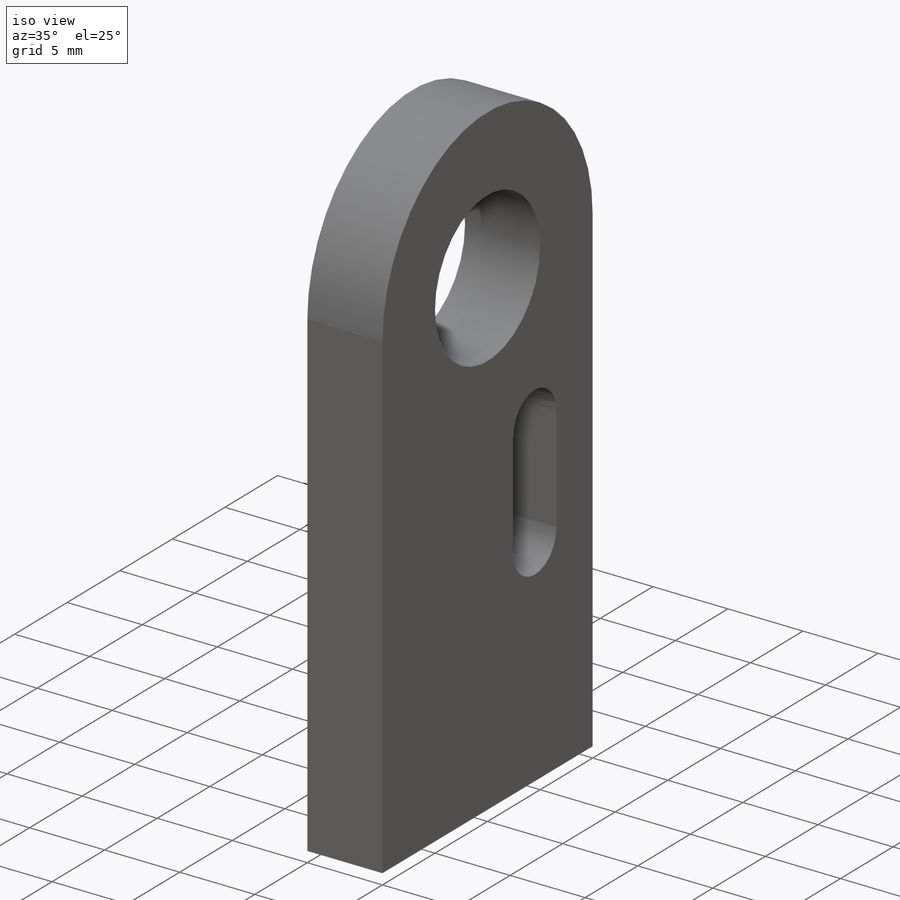
[diagram: iso view]
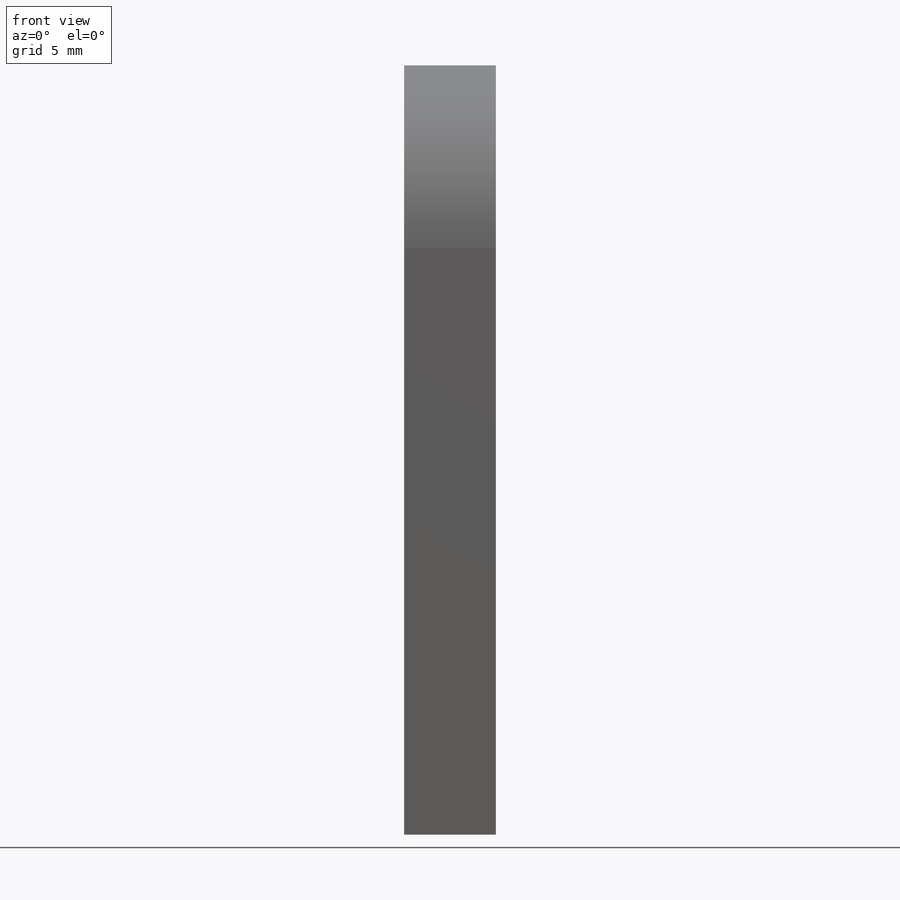
[diagram: front view]
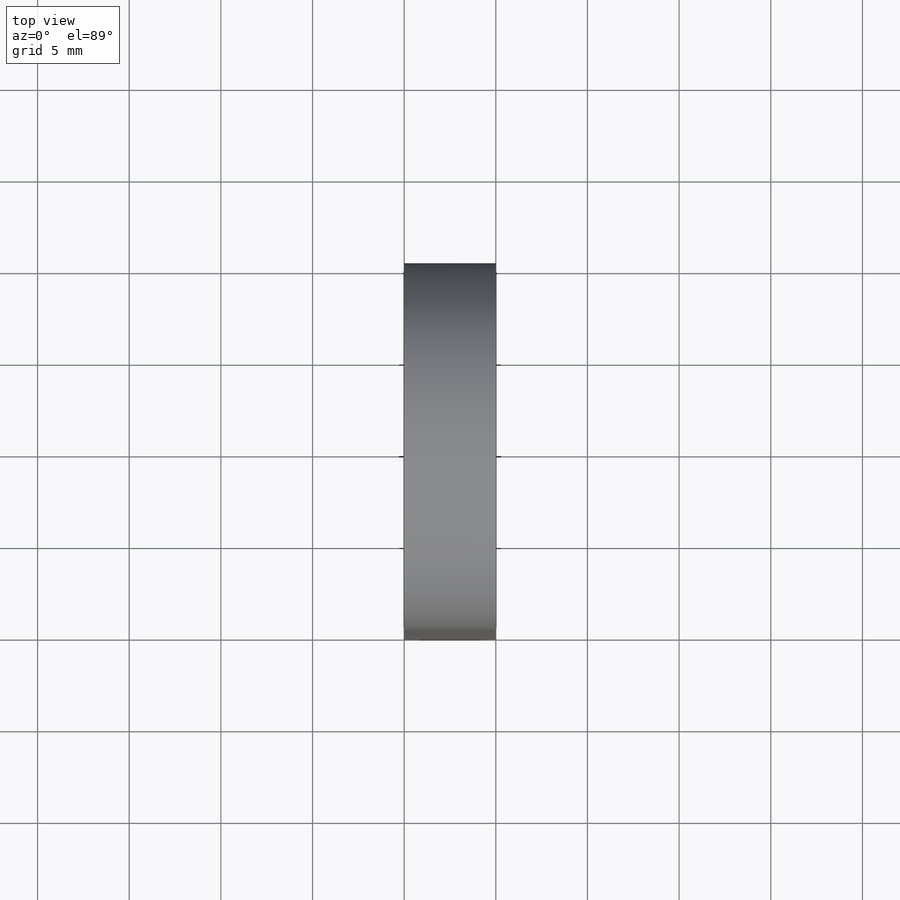
[diagram: top view]
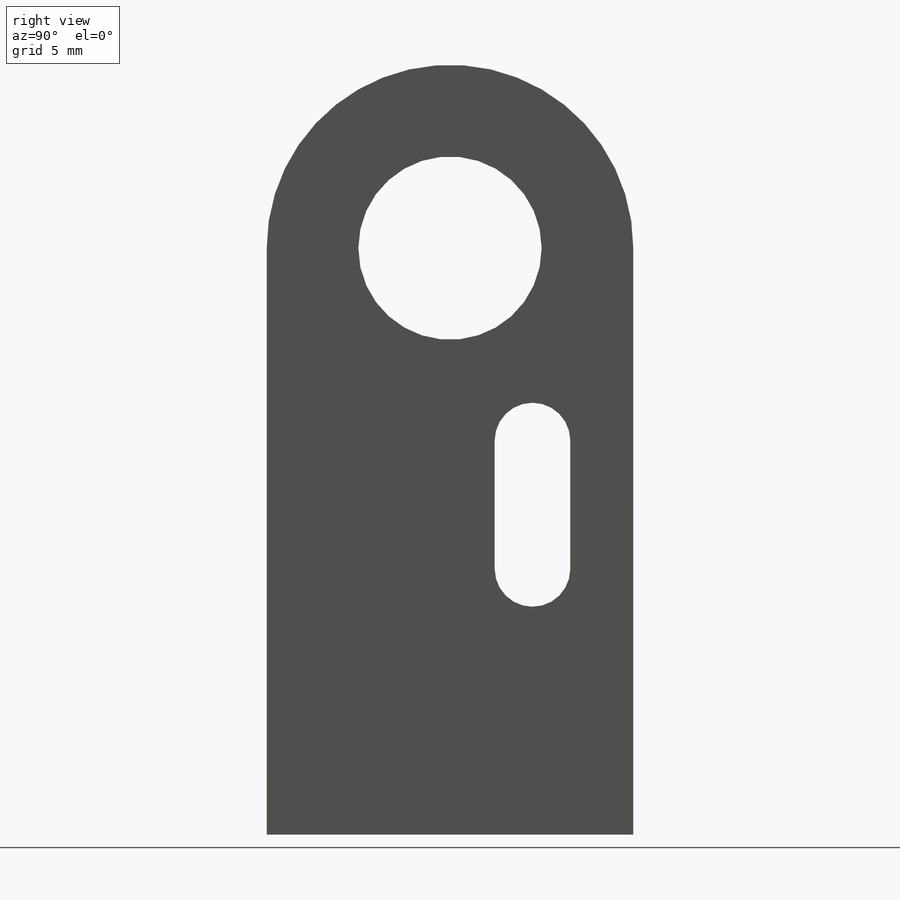
[diagram: right view]
SOLIDWORKS PART (.sldprt)
format: sldprt  version: not decoded by parser v0  size: 296,960 bytes
history: native  units: mm
features: sketch x11, mirror x4, hole x3, material x1, extrude x1, thread x1, plane x1 (+12 scaffold rows collapsed)
feature tree (34):
  scaffold x12  (default folders/planes/origin — collapsed)
  material  "Material <not specified>"
  sketch  "Sketch1"  dims[c1.D2=10.0mm c1.D1=10.0mm c2.D2=42.0mm c2.D3=10.0mm c3.D2=10.0mm c3.D3=10.0mm c3.D4=10.0mm c4.D3=7.5mm c4.D4=22.0mm c5.D3=5.0mm c5.D1=40.0mm c6.D3=5.0mm c6.D4=12.5mm c6.D5=5.0mm c6.D6=10.0mm]
  extrude  "Boss-Extrude1"  Depth=5mm
  sketch  "Sketch3"  dims[D1=32.0mm]
  hole  "Ø11.0 (11) Diameter Hole1"  Diameter=11mm Depth=25mm
  sketch  "3DSketch2"
  sketch  "Sketch4"  dims[hole-wizard template sketch: 47 standard entries collapsed; hole parameters kept: c15.Hole Depth=25.0mm c15.D3=~14.816244mm c15.Drill Angle=118.0deg]
  hole  "M3 Tapped Hole2"  Diameter=2.5mm Depth=18mm
  sketch  "Sketch10"
  sketch  "Sketch9"  dims[hole-wizard template sketch: 47 standard entries collapsed; hole parameters kept: c15.Tap Drill Depth=18.0mm c15.D3=~14.816244mm c15.Drill Angle=118.0deg]
  thread  "Hole Thread4"  Diameter=6mm  [1 undecoded]
  sketch  "Sketch11"
  sketch  "Sketch12"
  plane  "Plane1"
  mirror  "Mirror1"
  sketch  "Sketch13"  dims[D1=8.0mm D2=8.0mm]
  hole  "M3 Tapped Hole3"  Diameter=2.5mm Depth=8mm
  sketch  "3DSketch3"
  sketch  "Sketch14"  dims[hole-wizard template sketch: 50 standard entries collapsed; hole parameters above]
  mirror  "Hole Thread5"
  mirror  "Hole Thread6"
  mirror  "Hole Thread7"
decode coverage: 11 of 20 modeling features carry decoded parameters
note: ~ marks probable driven/reference dimensions
note: 1 parameter value undecoded
note: suppression state not decoded; provenance and decode notes live in map.json
